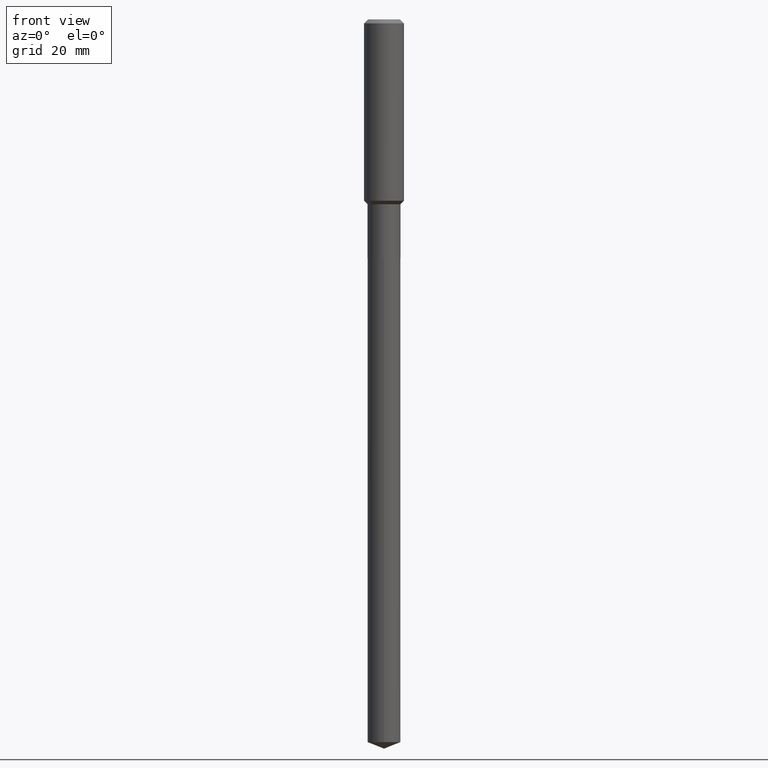
[diagram: clean part render]
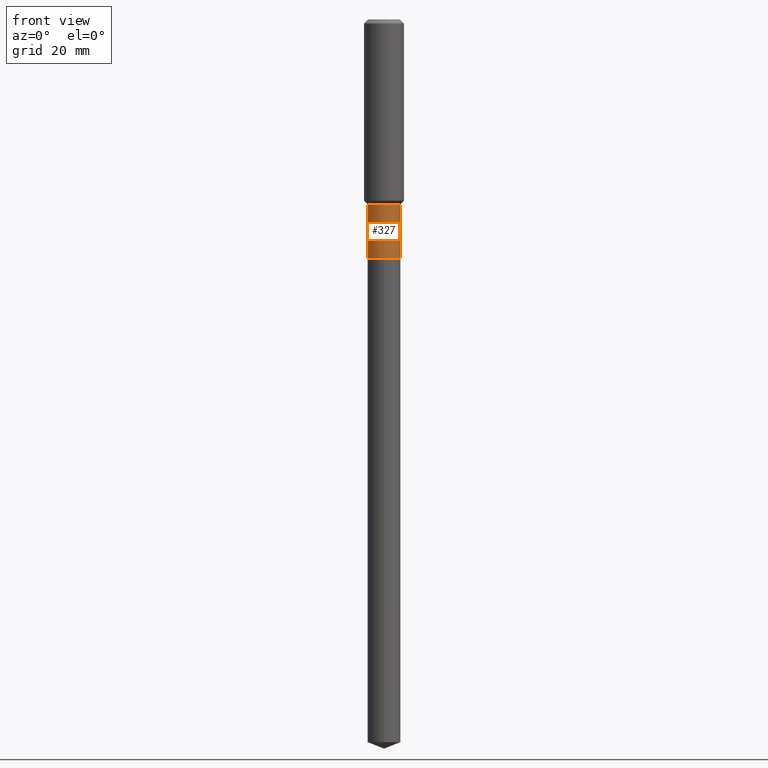
[diagram: same view with one face highlighted and labeled with its STEP entity id]
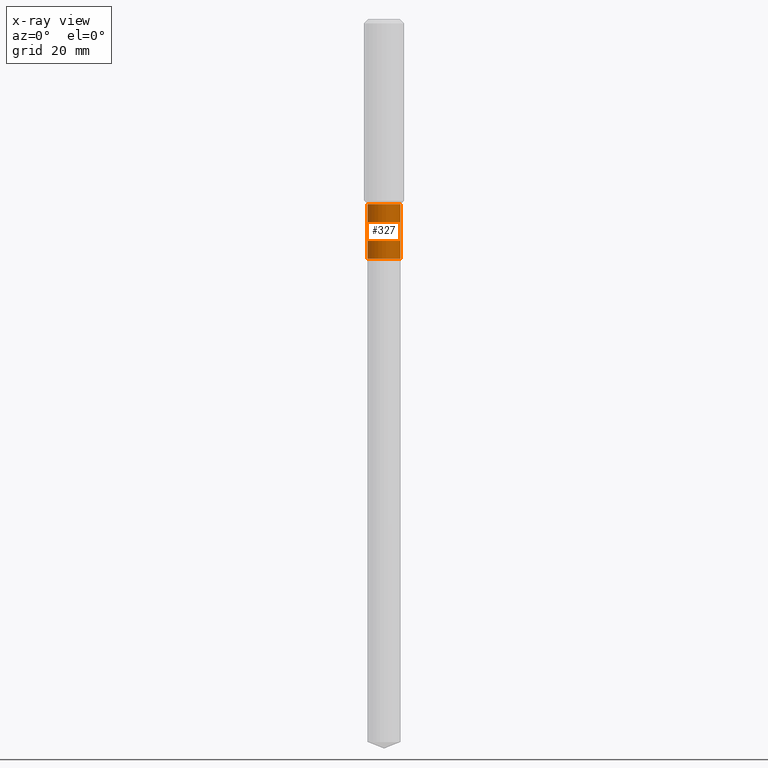
[diagram: x-ray of the same camera — body ghosted, the highlighted face saturated]
A machine part, front view. The second image highlights one B-rep face of the part: STEP entity #327.
The next image is the same camera in x-ray: the body ghosted, the highlighted face saturated — about 0% of this face is hidden behind the body in this view.
In plain terms, the highlighted cylindrical surface (edge-blend (fillet) strip) has radius 3.2995 mm, axis along (-0, 0, 1).
Its self-contained STEP definition (entity closure, byte-faithful):
#2 = CARTESIAN_POINT ( 'NONE',  ( 0.1298999999999999599, -9.070868518314457948E-16, 6.334153631758918028E-30 ) ) ;
#16 = CARTESIAN_POINT ( 'NONE',  ( 4.610442340300837897E-29, -6.582489768120982469E-15, -1.885299999999999976 ) ) ;
#17 = LINE ( 'NONE', #51, #293 ) ;
#33 = VERTEX_POINT ( 'NONE', #118 ) ;
#51 = CARTESIAN_POINT ( 'NONE',  ( -0.1298999999999999599, 9.229950137523698568E-16, -6.389696682241120408E-30 ) ) ;
#54 = DIRECTION ( 'NONE',  ( -2.445468806185136597E-29, 3.491481338843145583E-15, 1.000000000000000000 ) ) ;
#62 = VECTOR ( 'NONE', #367, 39.37007874015748143 ) ;
#63 = CIRCLE ( 'NONE', #286, 0.1298999999999999322 ) ;
#82 = EDGE_CURVE ( 'NONE', #396, #33, #153, .T. ) ;
#88 = DIRECTION ( 'NONE',  ( -2.445468806185136597E-29, 3.491481338843145583E-15, 1.000000000000000000 ) ) ;
#104 = AXIS2_PLACEMENT_3D ( 'NONE', #167, #88, #236 ) ;
#106 = CARTESIAN_POINT ( 'NONE',  ( -0.1298999999999999322, -4.911794025655352657E-15, -1.456999999999999851 ) ) ;
#118 = CARTESIAN_POINT ( 'NONE',  ( 0.1298999999999999877, -7.489576619952428856E-15, -1.885299999999999976 ) ) ;
#132 = DIRECTION ( 'NONE',  ( -2.445468806185136597E-29, 3.491481338843145583E-15, 1.000000000000000000 ) ) ;
#144 = ORIENTED_EDGE ( 'NONE', *, *, #82, .T. ) ;
#147 = EDGE_LOOP ( 'NONE', ( #309, #144, #482, #291 ) ) ;
#153 = CIRCLE ( 'NONE', #431, 0.1298999999999999877 ) ;
#167 = CARTESIAN_POINT ( 'NONE',  ( 0.000000000000000000, 0.000000000000000000, 0.000000000000000000 ) ) ;
#175 = CARTESIAN_POINT ( 'NONE',  ( 3.563048050611743587E-29, -5.087088310694461770E-15, -1.456999999999999851 ) ) ;
#203 = DIRECTION ( 'NONE',  ( -2.445468806185136877E-29, 3.491481338843145188E-15, 1.000000000000000000 ) ) ;
#236 = DIRECTION ( 'NONE',  ( 1.000000000000000000, -6.982962677686266711E-15, 4.876176775795935232E-29 ) ) ;
#241 = DIRECTION ( 'NONE',  ( 1.000000000000000000, -6.982962677686268288E-15, 0.000000000000000000 ) ) ;
#258 = VERTEX_POINT ( 'NONE', #106 ) ;
#270 = FACE_OUTER_BOUND ( 'NONE', #147, .T. ) ;
#286 = AXIS2_PLACEMENT_3D ( 'NONE', #175, #132, #412 ) ;
#291 = ORIENTED_EDGE ( 'NONE', *, *, #479, .F. ) ;
#293 = VECTOR ( 'NONE', #203, 39.37007874015748143 ) ;
#309 = ORIENTED_EDGE ( 'NONE', *, *, #338, .F. ) ;
#323 = VERTEX_POINT ( 'NONE', #435 ) ;
#327 = ADVANCED_FACE ( 'NONE', ( #270 ), #344, .T. ) ;
#338 = EDGE_CURVE ( 'NONE', #396, #258, #17, .T. ) ;
#339 = LINE ( 'NONE', #2, #62 ) ;
#344 = CYLINDRICAL_SURFACE ( 'NONE', #104, 0.1298999999999999599 ) ;
#367 = DIRECTION ( 'NONE',  ( -2.445468806185136877E-29, 3.491481338843145188E-15, 1.000000000000000000 ) ) ;
#388 = EDGE_CURVE ( 'NONE', #33, #323, #339, .T. ) ;
#396 = VERTEX_POINT ( 'NONE', #441 ) ;
#412 = DIRECTION ( 'NONE',  ( 1.000000000000000000, -6.982962677686263555E-15, 0.000000000000000000 ) ) ;
#431 = AXIS2_PLACEMENT_3D ( 'NONE', #16, #54, #241 ) ;
#435 = CARTESIAN_POINT ( 'NONE',  ( 0.1298999999999999322, -5.994175162525907368E-15, -1.456999999999999851 ) ) ;
#441 = CARTESIAN_POINT ( 'NONE',  ( -0.1298999999999999877, -4.911794025655352657E-15, -1.885299999999999976 ) ) ;
#479 = EDGE_CURVE ( 'NONE', #258, #323, #63, .T. ) ;
#482 = ORIENTED_EDGE ( 'NONE', *, *, #388, .T. ) ;